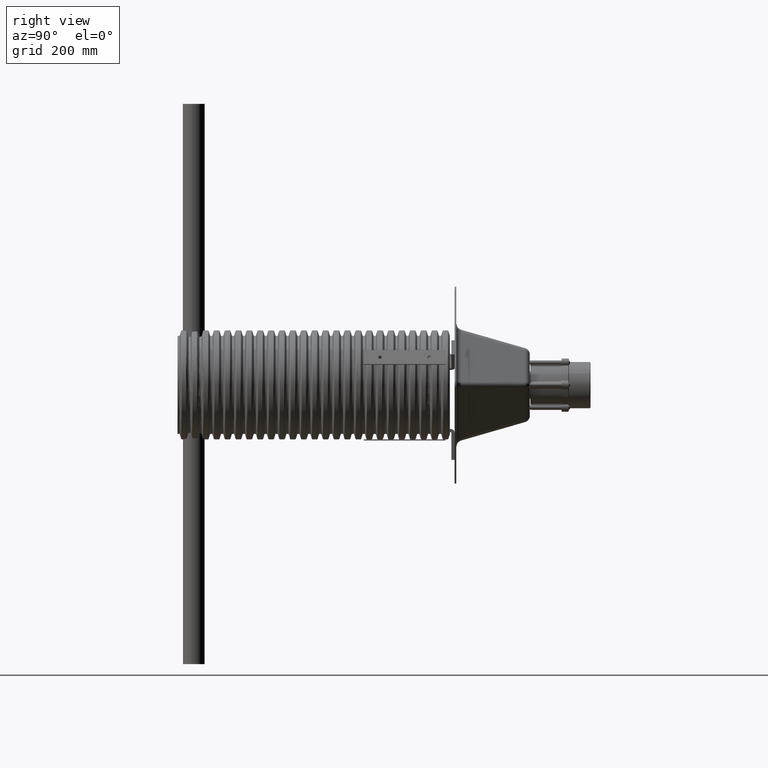
[diagram: clean part render]
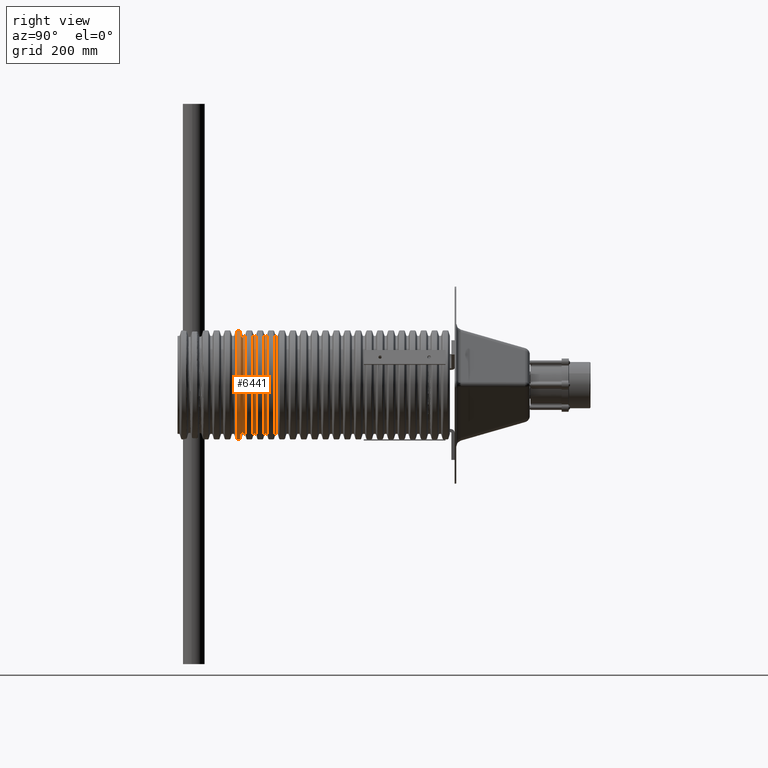
[diagram: same view with one face highlighted and labeled with its STEP entity id]
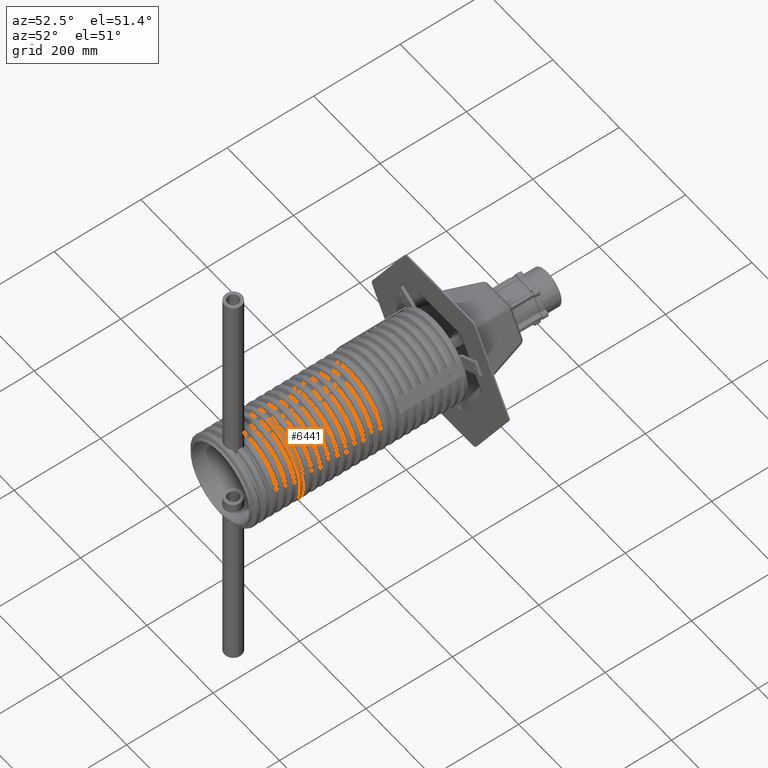
[diagram: same view with one face highlighted and labeled with its STEP entity id]
A machine part, right view. The second image highlights one B-rep face of the part: STEP entity #6441.
A second angle (auxiliary view) of the same face is appended — the face is thin or edge-on in the first view.
In plain terms, the highlighted cylindrical surface (partial cylindrical patch) has radius 100 mm, axis along (0, 1, 0).
Its self-contained STEP definition (entity closure, byte-faithful):
#134 = DIRECTION ( 'NONE',  ( -0.0000000000000000000, 1.000000000000000000, -0.0000000000000000000 ) ) ;
#3274 = LINE ( 'NONE', #7055, #40252 ) ;
#5489 = VERTEX_POINT ( 'NONE', #23009 ) ;
#6441 = ADVANCED_FACE ( 'NONE', ( #36679 ), #9191, .T. ) ;
#6820 = AXIS2_PLACEMENT_3D ( 'NONE', #11839, #36912, #15479 ) ;
#7055 = CARTESIAN_POINT ( 'NONE',  ( 1.224646799147401969E-14, 0.0000000000000000000, -100.0000000000039790 ) ) ;
#8079 = EDGE_CURVE ( 'NONE', #28247, #9223, #9602, .T. ) ;
#8352 = ORIENTED_EDGE ( 'NONE', *, *, #42292, .F. ) ;
#9019 = DIRECTION ( 'NONE',  ( -0.0000000000000000000, 1.000000000000000000, -0.0000000000000000000 ) ) ;
#9191 = CYLINDRICAL_SURFACE ( 'NONE', #25248, 100.0000000000039790 ) ;
#9223 = VERTEX_POINT ( 'NONE', #20641 ) ;
#9602 = LINE ( 'NONE', #23197, #18047 ) ;
#10580 = CARTESIAN_POINT ( 'NONE',  ( 1.224646799147401969E-14, -384.4880613009359536, -100.0000000000039790 ) ) ;
#11839 = CARTESIAN_POINT ( 'NONE',  ( 0.0000000000000000000, -391.5119386984405878, 0.0000000000000000000 ) ) ;
#13550 = EDGE_LOOP ( 'NONE', ( #38378, #28288, #8352, #31429 ) ) ;
#15479 = DIRECTION ( 'NONE',  ( 0.0000000000000000000, 0.0000000000000000000, 1.000000000000000000 ) ) ;
#18047 = VECTOR ( 'NONE', #26803, 1000.000000000000000 ) ;
#20641 = CARTESIAN_POINT ( 'NONE',  ( 0.0000000000000000000, -384.4880613009359536, 100.0000000000039790 ) ) ;
#21266 = AXIS2_PLACEMENT_3D ( 'NONE', #30498, #9019, #34094 ) ;
#21505 = DIRECTION ( 'NONE',  ( -0.0000000000000000000, 1.000000000000000000, -0.0000000000000000000 ) ) ;
#22143 = CIRCLE ( 'NONE', #21266, 100.0000000000039790 ) ;
#23009 = CARTESIAN_POINT ( 'NONE',  ( 1.224646799147402757E-14, -391.5119386984405878, -100.0000000000040643 ) ) ;
#23197 = CARTESIAN_POINT ( 'NONE',  ( 0.0000000000000000000, 0.0000000000000000000, 100.0000000000039790 ) ) ;
#25248 = AXIS2_PLACEMENT_3D ( 'NONE', #42678, #134, #42972 ) ;
#26803 = DIRECTION ( 'NONE',  ( -0.0000000000000000000, 1.000000000000000000, -0.0000000000000000000 ) ) ;
#28247 = VERTEX_POINT ( 'NONE', #45162 ) ;
#28288 = ORIENTED_EDGE ( 'NONE', *, *, #39910, .T. ) ;
#30498 = CARTESIAN_POINT ( 'NONE',  ( 0.0000000000000000000, -384.4880613009359536, 0.0000000000000000000 ) ) ;
#31429 = ORIENTED_EDGE ( 'NONE', *, *, #8079, .F. ) ;
#31459 = CIRCLE ( 'NONE', #6820, 100.0000000000039648 ) ;
#33543 = EDGE_CURVE ( 'NONE', #28247, #5489, #31459, .T. ) ;
#34094 = DIRECTION ( 'NONE',  ( 0.0000000000000000000, 0.0000000000000000000, 1.000000000000000000 ) ) ;
#36679 = FACE_OUTER_BOUND ( 'NONE', #13550, .T. ) ;
#36912 = DIRECTION ( 'NONE',  ( -0.0000000000000000000, 1.000000000000000000, -0.0000000000000000000 ) ) ;
#38378 = ORIENTED_EDGE ( 'NONE', *, *, #33543, .T. ) ;
#39910 = EDGE_CURVE ( 'NONE', #5489, #44252, #3274, .T. ) ;
#40252 = VECTOR ( 'NONE', #21505, 1000.000000000000000 ) ;
#42292 = EDGE_CURVE ( 'NONE', #9223, #44252, #22143, .T. ) ;
#42678 = CARTESIAN_POINT ( 'NONE',  ( 0.0000000000000000000, 0.0000000000000000000, 0.0000000000000000000 ) ) ;
#42972 = DIRECTION ( 'NONE',  ( 0.0000000000000000000, 0.0000000000000000000, 1.000000000000000000 ) ) ;
#44252 = VERTEX_POINT ( 'NONE', #10580 ) ;
#45162 = CARTESIAN_POINT ( 'NONE',  ( 0.0000000000000000000, -391.5119386984405878, 100.0000000000040643 ) ) ;